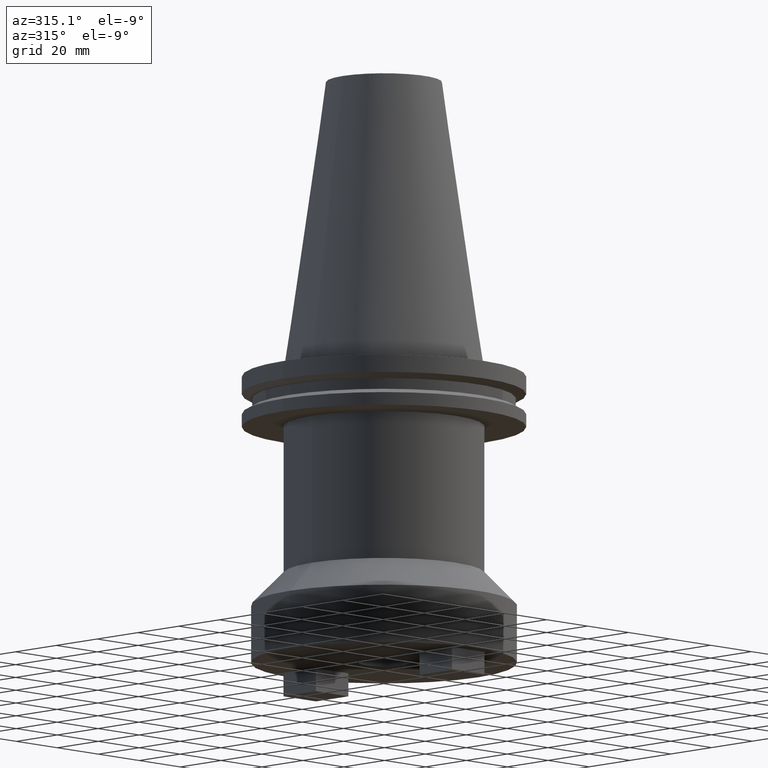
[diagram: clean part render]
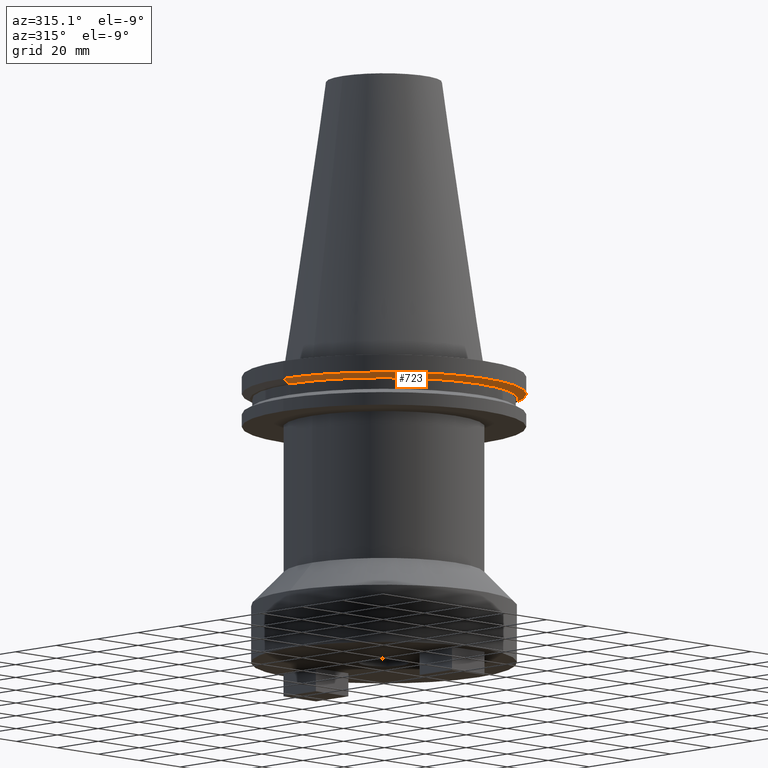
[diagram: same view with one face highlighted and labeled with its STEP entity id]
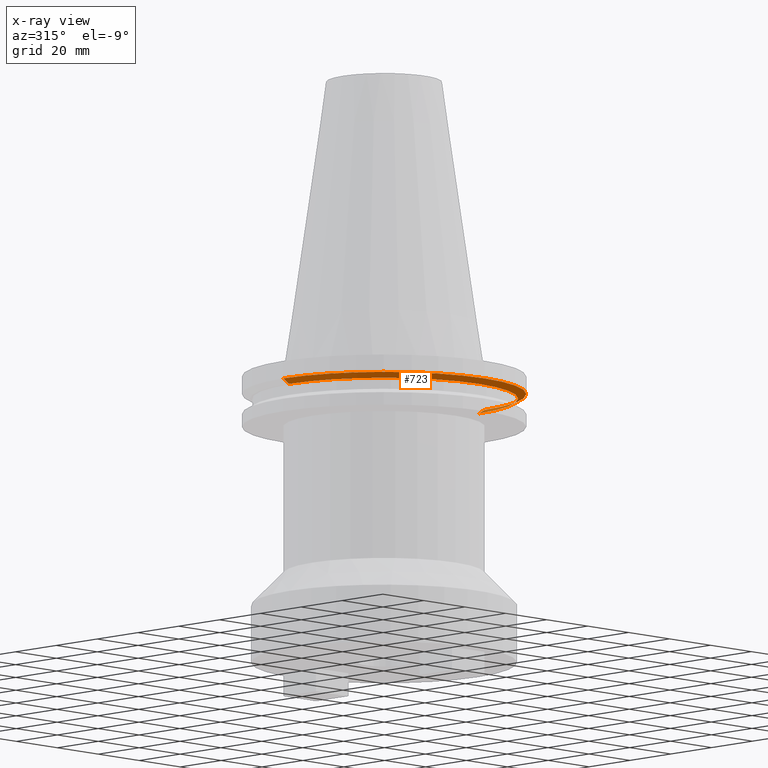
[diagram: x-ray of the same camera — body ghosted, the highlighted face saturated]
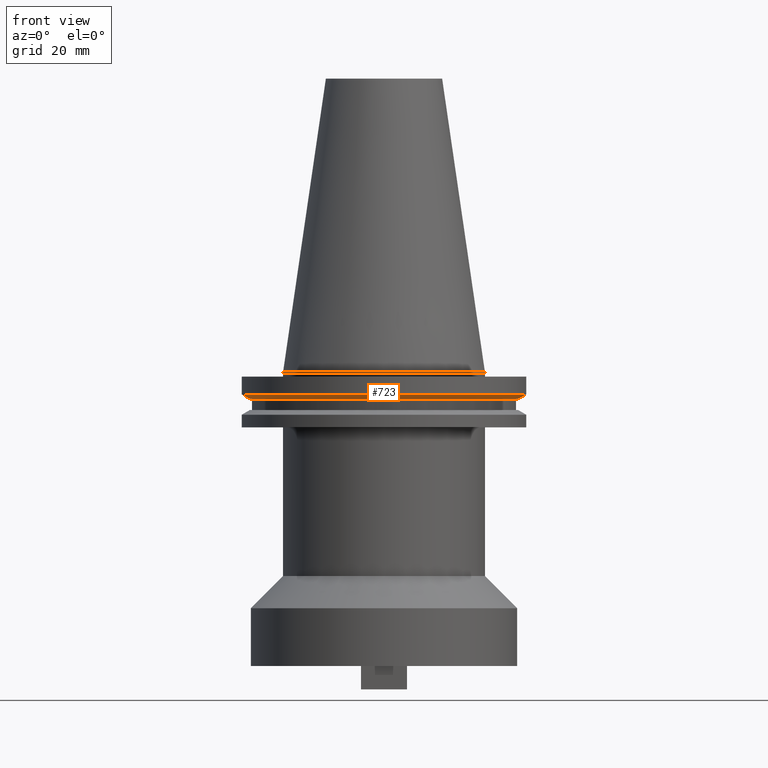
[diagram: same view with one face highlighted and labeled with its STEP entity id]
A machine part, auxiliary view. The second image highlights one B-rep face of the part: STEP entity #723.
The next image is the same camera in x-ray: the body ghosted, the highlighted face saturated — about 4% of this face is hidden behind the body in this view.
A second angle (front view) of the same face is appended — the face is thin or edge-on in the first view.
In plain terms, the highlighted conical surface has half-angle 60 deg.
Its self-contained STEP definition (entity closure, byte-faithful):
#13 = EDGE_CURVE ( 'NONE', #582, #614, #744, .T. ) ;
#17 = ORIENTED_EDGE ( 'NONE', *, *, #217, .T. ) ;
#58 = CARTESIAN_POINT ( 'NONE',  ( -49.21500000000000341, 6.027099222003699404E-15, -7.602389855251287187 ) ) ;
#111 = VERTEX_POINT ( 'NONE', #630 ) ;
#120 = DIRECTION ( 'NONE',  ( -0.8660254037844273833, 1.060575238724893110E-16, 0.5000000000000195399 ) ) ;
#124 = VECTOR ( 'NONE', #120, 1000.000000000000000 ) ;
#165 = DIRECTION ( 'NONE',  ( -0.000000000000000000, -0.000000000000000000, 1.000000000000000000 ) ) ;
#176 = CARTESIAN_POINT ( 'NONE',  ( 0.000000000000000000, 0.000000000000000000, -9.204999999999991189 ) ) ;
#201 = CIRCLE ( 'NONE', #887, 46.43919780457007818 ) ;
#205 = CARTESIAN_POINT ( 'NONE',  ( -46.43919780457007818, 5.687161494633754392E-15, -9.204999999999991189 ) ) ;
#217 = EDGE_CURVE ( 'NONE', #619, #111, #201, .T. ) ;
#262 = EDGE_CURVE ( 'NONE', #111, #614, #643, .T. ) ;
#278 = AXIS2_PLACEMENT_3D ( 'NONE', #334, #165, #671 ) ;
#300 = ORIENTED_EDGE ( 'NONE', *, *, #262, .T. ) ;
#301 = VECTOR ( 'NONE', #637, 1000.000000000000000 ) ;
#334 = CARTESIAN_POINT ( 'NONE',  ( 0.000000000000000000, 0.000000000000000000, -7.602389855251287187 ) ) ;
#352 = DIRECTION ( 'NONE',  ( 1.000000000000000000, 0.000000000000000000, 0.000000000000000000 ) ) ;
#363 = AXIS2_PLACEMENT_3D ( 'NONE', #176, #1024, #352 ) ;
#396 = DIRECTION ( 'NONE',  ( -0.000000000000000000, -0.000000000000000000, 1.000000000000000000 ) ) ;
#478 = DIRECTION ( 'NONE',  ( 1.000000000000000000, 0.000000000000000000, 0.000000000000000000 ) ) ;
#513 = EDGE_LOOP ( 'NONE', ( #1077, #17, #300, #518 ) ) ;
#518 = ORIENTED_EDGE ( 'NONE', *, *, #13, .F. ) ;
#554 = LINE ( 'NONE', #205, #124 ) ;
#582 = VERTEX_POINT ( 'NONE', #58 ) ;
#614 = VERTEX_POINT ( 'NONE', #657 ) ;
#619 = VERTEX_POINT ( 'NONE', #992 ) ;
#630 = CARTESIAN_POINT ( 'NONE',  ( 46.43919780457007818, 0.000000000000000000, -9.204999999999991189 ) ) ;
#637 = DIRECTION ( 'NONE',  ( 0.8660254037844273833, 0.000000000000000000, 0.5000000000000195399 ) ) ;
#643 = LINE ( 'NONE', #731, #301 ) ;
#657 = CARTESIAN_POINT ( 'NONE',  ( 49.21500000000000341, 0.000000000000000000, -7.602389855251287187 ) ) ;
#671 = DIRECTION ( 'NONE',  ( 1.000000000000000000, 0.000000000000000000, 0.000000000000000000 ) ) ;
#685 = FACE_OUTER_BOUND ( 'NONE', #513, .T. ) ;
#723 = ADVANCED_FACE ( 'NONE', ( #685 ), #752, .T. ) ;
#731 = CARTESIAN_POINT ( 'NONE',  ( 46.43919780457007818, 0.000000000000000000, -9.204999999999991189 ) ) ;
#735 = CARTESIAN_POINT ( 'NONE',  ( 0.000000000000000000, 0.000000000000000000, -9.204999999999991189 ) ) ;
#744 = CIRCLE ( 'NONE', #278, 49.21500000000000341 ) ;
#751 = EDGE_CURVE ( 'NONE', #619, #582, #554, .T. ) ;
#752 = CONICAL_SURFACE ( 'NONE', #363, 46.43919780457007818, 1.047197551196575205 ) ;
#887 = AXIS2_PLACEMENT_3D ( 'NONE', #735, #396, #478 ) ;
#992 = CARTESIAN_POINT ( 'NONE',  ( -46.43919780457007818, 5.857130358318727293E-15, -9.204999999999991189 ) ) ;
#1024 = DIRECTION ( 'NONE',  ( -0.000000000000000000, -0.000000000000000000, 1.000000000000000000 ) ) ;
#1077 = ORIENTED_EDGE ( 'NONE', *, *, #751, .F. ) ;